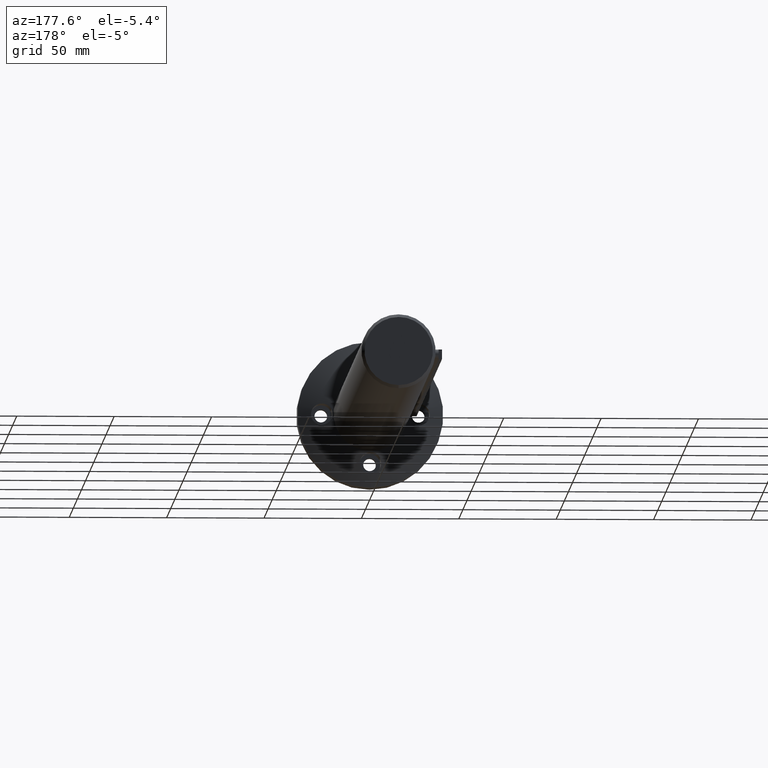
[diagram: clean part render]
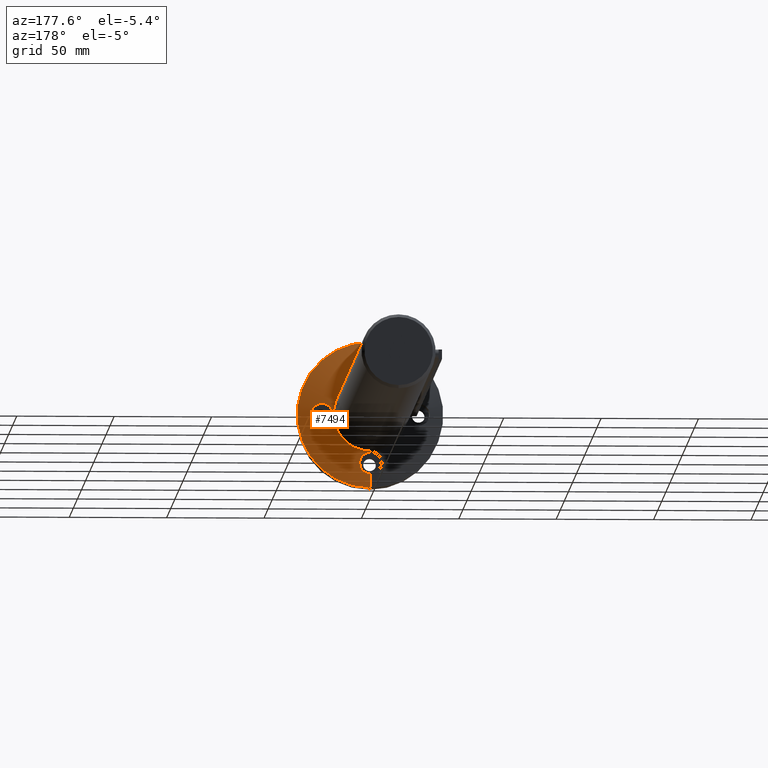
[diagram: same view with one face highlighted and labeled with its STEP entity id]
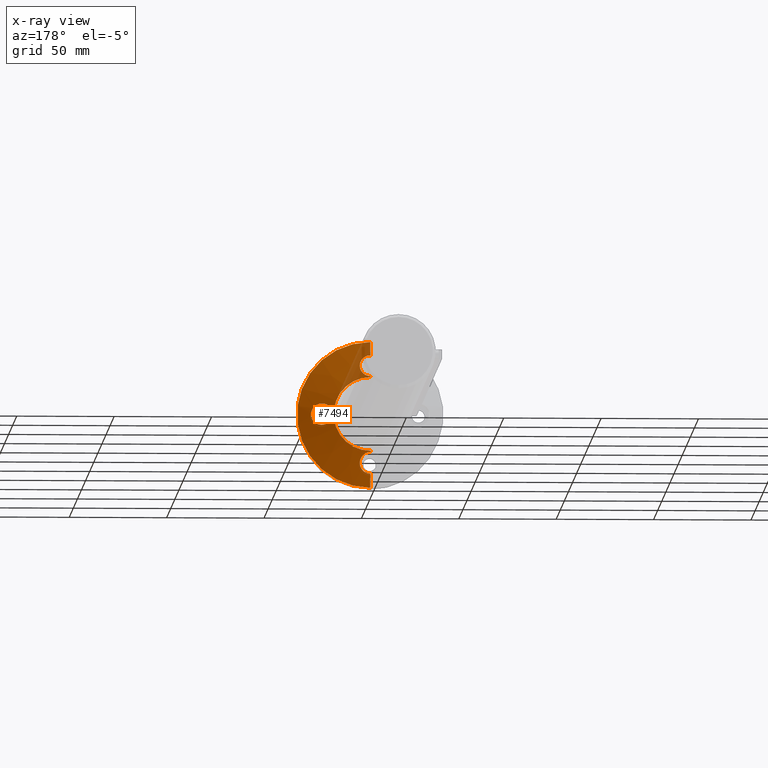
[diagram: x-ray of the same camera — body ghosted, the highlighted face saturated]
A machine part, auxiliary view. The second image highlights one B-rep face of the part: STEP entity #7494.
The next image is the same camera in x-ray: the body ghosted, the highlighted face saturated — about 9% of this face is hidden behind the body in this view.
In plain terms, the highlighted conical surface has half-angle 74.876 deg.
Its self-contained STEP definition (entity closure, byte-faithful):
#428 = CARTESIAN_POINT ( 'NONE',  ( 26.39801527887995600, 10.78649645093713300, -5.331111311917179100 ) ) ;
#575 = EDGE_CURVE ( 'NONE', #12314, #9036, #16338, .T. ) ;
#579 = CARTESIAN_POINT ( 'NONE',  ( 5.323847713684704900, 11.53299256842802100, 23.57490783584345800 ) ) ;
#616 = CARTESIAN_POINT ( 'NONE',  ( 25.35161197941932100, 11.05388829628119800, 5.500000000000087000 ) ) ;
#752 = CARTESIAN_POINT ( 'NONE',  ( 5.211254955513627600, 11.62997660117241200, -23.23243377498425800 ) ) ;
#810 = CARTESIAN_POINT ( 'NONE',  ( 5.314325494468595100, 11.53434734721425800, -23.57191978165690200 ) ) ;
#880 = CARTESIAN_POINT ( 'NONE',  ( 4.782018660267179500, 11.91167692518994600, -22.25995271287487400 ) ) ;
#987 = FACE_BOUND ( 'NONE', #18546, .T. ) ;
#1031 = CARTESIAN_POINT ( 'NONE',  ( 1.268515319562685700, 9.854007025275715000, 30.35485702944822300 ) ) ;
#1183 = CARTESIAN_POINT ( 'NONE',  ( 20.24633523570094300, 12.54180942294675400, -2.790142792179151500 ) ) ;
#1246 = CARTESIAN_POINT ( 'NONE',  ( 20.65872060524221600, 12.40711030405202600, 3.396038314297764100 ) ) ;
#1375 = CARTESIAN_POINT ( 'NONE',  ( 24.64476905354898400, 11.24046511584360900, -5.499999999999903200 ) ) ;
#1505 = CIRCLE ( 'NONE', #18237, 37.50000000000000000 ) ;
#1552 = DIRECTION ( 'NONE',  ( 0.0000000000000000000, 0.0000000000000000000, -1.000000000000000000 ) ) ;
#1946 = CARTESIAN_POINT ( 'NONE',  ( 30.46322909123390200, 9.829928301211518600, -0.7326783261846602200 ) ) ;
#2000 = CARTESIAN_POINT ( 'NONE',  ( 29.75568654415203800, 9.988235776532468100, 2.786356102141914500 ) ) ;
#2159 = B_SPLINE_CURVE_WITH_KNOTS ( 'NONE', 3,
 ( #6485, #3553, #14259, #428, #12877, #11304, #11239, #15750, #3481, #12812, #18901, #11364, #8112, #15682, #6620, #14328, #9626, #9768, #11172, #1946, #2209, #12735, #8040, #9560, #5225, #5153, #2000, #15813, #14119, #17285, #9839, #8177, #18834, #15612, #17160, #3624, #18696, #5030, #616, #17358 ),
 .UNSPECIFIED., .F., .F.,
 ( 4, 2, 2, 2, 2, 2, 2, 2, 2, 2, 2, 2, 2, 2, 2, 2, 2, 2, 2, 4 ),
 ( 0.004311644938302642100, 0.005401883976986389000, 0.006492123015670136000, 0.007582362054353883000, 0.008127481573695753000, 0.008672601093037621300, 0.009762840131721368200, 0.01085307917040511900, 0.01139819868974699400, 0.01194331820908886600, 0.01303355724777261400, 0.01412379628645636500, 0.01521403532514011400, 0.01630427436382386000, 0.01684939388316573900, 0.01739451340250761100, 0.01848475244119135100, 0.01957499147987509100, 0.02066523051855883400, 0.02175546955724257100 ),
 .UNSPECIFIED. ) ;
#2209 = CARTESIAN_POINT ( 'NONE',  ( 30.49960728186630700, 9.821881071039060300, -0.3709465265261098800 ) ) ;
#2242 = CARTESIAN_POINT ( 'NONE',  ( 0.7305167947689194000, 12.78214695166682300, 19.53629187338277300 ) ) ;
#2345 = CARTESIAN_POINT ( 'NONE',  ( 2.933552825463481000E-020, 12.79476704397512600, -19.50000000000000000 ) ) ;
#2405 = CARTESIAN_POINT ( 'NONE',  ( 2.463065993991829600, 12.59775193426848200, -20.07898576543667700 ) ) ;
#2470 = CARTESIAN_POINT ( 'NONE',  ( 1.452936648100822300, 12.73181138826895200, -19.68260184398263500 ) ) ;
#2536 = CARTESIAN_POINT ( 'NONE',  ( 5.150900771339578000, 11.67807697762335200, -23.06358428374239400 ) ) ;
#2547 = DIRECTION ( 'NONE',  ( 1.182229189286094700E-016, -0.2609090251427748100, 0.9653633930282662400 ) ) ;
#2582 = VERTEX_POINT ( 'NONE', #4165 ) ;
#2587 = CARTESIAN_POINT ( 'NONE',  ( 24.29090165356358400, 11.33578375906610500, 5.465753319676697000 ) ) ;
#2634 = CARTESIAN_POINT ( 'NONE',  ( 0.3663604389410376500, 9.821794071002148700, 30.50000000000002100 ) ) ;
#2649 = CARTESIAN_POINT ( 'NONE',  ( 19.86551706481137500, 12.66954804288231200, 1.980006346052376200 ) ) ;
#2777 = CARTESIAN_POINT ( 'NONE',  ( 19.53617602912471100, 12.78218837909437000, -0.7282936372457390300 ) ) ;
#3405 = EDGE_CURVE ( 'NONE', #2582, #15244, #9441, .T. ) ;
#3481 = CARTESIAN_POINT ( 'NONE',  ( 28.31422562025025900, 10.32106958471439900, -4.392987676842142100 ) ) ;
#3553 = CARTESIAN_POINT ( 'NONE',  ( 25.35312727900952700, 11.05348832088656200, -5.499999999999920100 ) ) ;
#3581 = CARTESIAN_POINT ( 'NONE',  ( 2.792191036982707000, 12.54132927226839900, 20.24781217420992600 ) ) ;
#3616 = EDGE_CURVE ( 'NONE', #12031, #6566, #11096, .T. ) ;
#3624 = CARTESIAN_POINT ( 'NONE',  ( 26.74505894518536700, 10.70002591120182300, 5.227896720093726300 ) ) ;
#3653 = CARTESIAN_POINT ( 'NONE',  ( 4.966595659734359500, 10.54192508235724200, 27.38951969629811200 ) ) ;
#3830 = CARTESIAN_POINT ( 'NONE',  ( 4.967902490863672900, 10.54249188098472500, -27.38715868255627600 ) ) ;
#3862 = LINE ( 'NONE', #9161, #11021 ) ;
#3891 = CARTESIAN_POINT ( 'NONE',  ( 0.3659692272805254400, 9.821794071002148700, -30.49999999999999600 ) ) ;
#4021 = CARTESIAN_POINT ( 'NONE',  ( 1.269371542004518600, 9.854049323828499900, -30.35466675231073100 ) ) ;
#4063 = CARTESIAN_POINT ( 'NONE',  ( 20.07343379618089000, 12.59947481286847200, -2.472133689391236900 ) ) ;
#4133 = CARTESIAN_POINT ( 'NONE',  ( 22.60000021001328800, 11.81203444870643100, 4.951956539565912900 ) ) ;
#4165 = CARTESIAN_POINT ( 'NONE',  ( 3.459627207591272700E-015, 12.92990217911026100, 19.00000000000000000 ) ) ;
#4191 = CARTESIAN_POINT ( 'NONE',  ( 19.69310695005757900, 12.72824270405712500, 1.456177317733412500 ) ) ;
#4270 = CARTESIAN_POINT ( 'NONE',  ( 23.25211947559593300, 11.62388095170341500, 5.226848775469945500 ) ) ;
#4336 = CARTESIAN_POINT ( 'NONE',  ( 21.68343123589858100, 12.08521741425533100, -4.401826608064181000 ) ) ;
#4625 = ORIENTED_EDGE ( 'NONE', *, *, #3616, .T. ) ;
#4935 = ORIENTED_EDGE ( 'NONE', *, *, #575, .T. ) ;
#5030 = CARTESIAN_POINT ( 'NONE',  ( 25.70581800175863300, 10.96228019779466400, 5.466163780723657200 ) ) ;
#5116 = CARTESIAN_POINT ( 'NONE',  ( 5.462207999339392800, 11.34251861966361500, 24.26615674234959700 ) ) ;
#5153 = CARTESIAN_POINT ( 'NONE',  ( 29.92953220108860200, 9.949093012591230700, 2.466649701499749700 ) ) ;
#5179 = CARTESIAN_POINT ( 'NONE',  ( 4.801955506852511500, 10.46565087671083900, 27.70572362948266900 ) ) ;
#5225 = CARTESIAN_POINT ( 'NONE',  ( 30.21351964314696700, 9.885443222124655100, 1.789933351272828400 ) ) ;
#5252 = CARTESIAN_POINT ( 'NONE',  ( 5.501371497882317400, 11.05889151857052100, 25.33236919784458200 ) ) ;
#5293 = CARTESIAN_POINT ( 'NONE',  ( 5.469230626416604400, 10.96883332008365600, -25.68036295555628400 ) ) ;
#5325 = CARTESIAN_POINT ( 'NONE',  ( 2.388081677647586400E-015, 12.79476704397512600, 19.50000000000000000 ) ) ;
#5355 = CARTESIAN_POINT ( 'NONE',  ( 0.7307220069664403000, 12.78213703328114900, -19.53632052536513800 ) ) ;
#5489 = CARTESIAN_POINT ( 'NONE',  ( 2.141538868095484100, 9.916285189883963000, -30.07570811153192700 ) ) ;
#5547 = CARTESIAN_POINT ( 'NONE',  ( 5.328402174451660800, 10.79273945818467900, -26.37477251970350200 ) ) ;
#5590 = CARTESIAN_POINT ( 'NONE',  ( 19.50043621198926400, 12.79461589640680000, 0.3767933620478544600 ) ) ;
#5719 = CARTESIAN_POINT ( 'NONE',  ( 19.64775441663947200, 12.74380156284863100, 1.279345098856618600 ) ) ;
#5784 = CARTESIAN_POINT ( 'NONE',  ( 25.00000000000000000, 11.14669907847771100, 5.500000000000087000 ) ) ;
#5846 = CARTESIAN_POINT ( 'NONE',  ( 20.25282714415752100, 12.53966918358475600, 2.800737919241833100 ) ) ;
#5957 = DIRECTION ( 'NONE',  ( 0.0000000000000000000, -0.2609090251427748100, -0.9653633930282662400 ) ) ;
#6087 = CARTESIAN_POINT ( 'NONE',  ( 0.0000000000000000000, 12.92990217911026100, 0.0000000000000000000 ) ) ;
#6426 = EDGE_CURVE ( 'NONE', #17836, #2582, #11503, .T. ) ;
#6485 = CARTESIAN_POINT ( 'NONE',  ( 24.99999999999995000, 11.14669907847769700, -5.500000000000593300 ) ) ;
#6566 = VERTEX_POINT ( 'NONE', #14265 ) ;
#6581 = VECTOR ( 'NONE', #16697, 1000.000000000000200 ) ;
#6620 = CARTESIAN_POINT ( 'NONE',  ( 29.92742105640299100, 9.949569175526320900, -2.470165208596000600 ) ) ;
#6649 = CARTESIAN_POINT ( 'NONE',  ( 0.0000000000000000000, 7.929902179110256600, -37.50000000000000700 ) ) ;
#6650 = CARTESIAN_POINT ( 'NONE',  ( 5.468845139676812300, 10.96792591244648700, 25.68388061440690600 ) ) ;
#6717 = CARTESIAN_POINT ( 'NONE',  ( 5.222052817795360000, 11.62805871065856200, 23.23735822942292000 ) ) ;
#6732 = VERTEX_POINT ( 'NONE', #7217 ) ;
#6780 = CARTESIAN_POINT ( 'NONE',  ( 4.053354256708110400, 10.22553131565372700, 28.72191729353113100 ) ) ;
#6820 = CARTESIAN_POINT ( 'NONE',  ( 1.449148040046901700, 9.864248390927720300, -30.30881485741547400 ) ) ;
#6827 = CARTESIAN_POINT ( 'NONE',  ( 2.326828918379971000E-015, 12.92990217911026100, 19.00000000000000000 ) ) ;
#6885 = CARTESIAN_POINT ( 'NONE',  ( 4.947613217353374000, 11.81978868365077200, -22.57161333785272800 ) ) ;
#6959 = CARTESIAN_POINT ( 'NONE',  ( 5.501901411166169700, 11.06040944635164700, -25.32650701660558900 ) ) ;
#7036 = CARTESIAN_POINT ( 'NONE',  ( 0.0000000000000000000, 12.92990217911026100, -19.00000000000000000 ) ) ;
#7084 = CARTESIAN_POINT ( 'NONE',  ( 5.369937587109558500, 10.83621335307170100, -26.20212921917931200 ) ) ;
#7114 = CARTESIAN_POINT ( 'NONE',  ( 1.970185223921731200, 9.902316631906982600, 30.13822784086261900 ) ) ;
#7128 = CARTESIAN_POINT ( 'NONE',  ( 22.59293394441234800, 11.81354847447173200, -4.958160141443325000 ) ) ;
#7192 = CARTESIAN_POINT ( 'NONE',  ( 24.64629338015773600, 11.24006275769552600, 5.500000000000085300 ) ) ;
#7217 = CARTESIAN_POINT ( 'NONE',  ( 4.592425496802575200E-015, 7.929902179110256600, 37.50000000000000700 ) ) ;
#7256 = CARTESIAN_POINT ( 'NONE',  ( 19.53826930483846200, 12.78146369818860100, 0.7433199040871109100 ) ) ;
#7321 = CARTESIAN_POINT ( 'NONE',  ( 21.40450809677707500, 12.17112873440942500, -4.177709203131093400 ) ) ;
#7389 = CARTESIAN_POINT ( 'NONE',  ( 22.27604885431228300, 11.90689928990734200, -4.791220722361005700 ) ) ;
#7459 = CARTESIAN_POINT ( 'NONE',  ( 24.99999999999995000, 11.14669907847769700, -5.500000000000593300 ) ) ;
#7494 = ADVANCED_FACE ( 'NONE', ( #987, #8643 ), #11739, .T. ) ;
#7804 = B_SPLINE_CURVE_WITH_KNOTS ( 'NONE', 3,
 ( #5325, #19055, #2242, #18864, #9930, #9719, #3581, #14489, #18922, #9867, #8461, #12698, #14222, #6717, #579, #5116, #15776, #5252, #6650, #15910, #17314, #3653, #5179, #15844, #17382, #9798, #6780, #8335, #18983, #8586, #10131, #7114, #16307, #17840, #1031, #19316, #2634, #17645 ),
 .UNSPECIFIED., .F., .F.,
 ( 4, 2, 2, 2, 2, 2, 2, 2, 2, 2, 2, 2, 2, 2, 2, 2, 2, 2, 4 ),
 ( 0.004468675874222746400, 0.005563339059980967700, 0.006658002245739189100, 0.007752665431497411300, 0.008847328617255633500, 0.009941991803013854000, 0.01103665498877207500, 0.01213131817453029900, 0.01322598136028851900, 0.01432064454604674100, 0.01541530773180496300, 0.01650997091756318400, 0.01705730251044228900, 0.01760463410332139800, 0.01869929728907961800, 0.01979396047483783500, 0.02034129206771694700, 0.02088862366059605900, 0.02198328684635428300 ),
 .UNSPECIFIED. ) ;
#8040 = CARTESIAN_POINT ( 'NONE',  ( 30.46358631091310800, 9.829849400859330900, 0.7290808785039762900 ) ) ;
#8112 = CARTESIAN_POINT ( 'NONE',  ( 29.34333952576795900, 10.08200699524948800, -3.393991864041229400 ) ) ;
#8177 = CARTESIAN_POINT ( 'NONE',  ( 28.60147672033569300, 10.25346617875427500, 4.172496248590133100 ) ) ;
#8209 = AXIS2_PLACEMENT_3D ( 'NONE', #15332, #15122, #18078 ) ;
#8335 = CARTESIAN_POINT ( 'NONE',  ( 3.675617059129112200, 10.13611863300059000, 29.10721749067213100 ) ) ;
#8371 = CARTESIAN_POINT ( 'NONE',  ( 2.938961254956614900, 12.50873751943362700, -20.34758227524511300 ) ) ;
#8461 = CARTESIAN_POINT ( 'NONE',  ( 4.393597216007564500, 12.08853217656832900, 21.67259087426898700 ) ) ;
#8534 = VERTEX_POINT ( 'NONE', #6649 ) ;
#8556 = CARTESIAN_POINT ( 'NONE',  ( 2.299777061742616100, 12.62401261099572600, -20.00062747177734900 ) ) ;
#8586 = CARTESIAN_POINT ( 'NONE',  ( 2.792065152134218600, 9.988884288748204600, 29.75279478908536400 ) ) ;
#8626 = CARTESIAN_POINT ( 'NONE',  ( 1.799119899854849400, 9.888371023045698000, -30.20064542323675000 ) ) ;
#8643 = FACE_OUTER_BOUND ( 'NONE', #9393, .T. ) ;
#8928 = CARTESIAN_POINT ( 'NONE',  ( 0.0000000000000000000, 7.929902179110256600, 0.0000000000000000000 ) ) ;
#8993 = CARTESIAN_POINT ( 'NONE',  ( 23.59245198915028800, 11.52808601102288400, -5.328575826706672700 ) ) ;
#9036 = VERTEX_POINT ( 'NONE', #11610 ) ;
#9161 = CARTESIAN_POINT ( 'NONE',  ( 0.0000000000000000000, 12.92990217911026100, -19.00000000000000000 ) ) ;
#9393 = EDGE_LOOP ( 'NONE', ( #18825, #16366, #19655, #17112, #16662, #14233, #4625, #13265 ) ) ;
#9441 = LINE ( 'NONE', #16764, #6581 ) ;
#9560 = CARTESIAN_POINT ( 'NONE',  ( 30.31996674102899500, 9.861758818588228300, 1.442320414659219700 ) ) ;
#9574 = LINE ( 'NONE', #15071, #11724 ) ;
#9626 = CARTESIAN_POINT ( 'NONE',  ( 30.20074463195731300, 9.888348899079753500, -1.798798504746121700 ) ) ;
#9719 = CARTESIAN_POINT ( 'NONE',  ( 2.468581621147383700, 12.60003873454271400, 20.07175197771180600 ) ) ;
#9768 = CARTESIAN_POINT ( 'NONE',  ( 30.30871347240178400, 9.864271000224102100, -1.449476476335380000 ) ) ;
#9798 = CARTESIAN_POINT ( 'NONE',  ( 4.172963970365067600, 10.25692965047576200, 28.58734067658143000 ) ) ;
#9839 = CARTESIAN_POINT ( 'NONE',  ( 28.98739522229115600, 10.16393220135383200, 3.792528077569750500 ) ) ;
#9867 = CARTESIAN_POINT ( 'NONE',  ( 4.167737185273481700, 12.17464881433680700, 21.39317917661739400 ) ) ;
#9903 = CARTESIAN_POINT ( 'NONE',  ( 3.399538895553316100, 10.08300512688654600, -29.33897491740260900 ) ) ;
#9930 = CARTESIAN_POINT ( 'NONE',  ( 1.800098683597059800, 12.69491683162051700, 19.79028133976828500 ) ) ;
#9970 = CARTESIAN_POINT ( 'NONE',  ( 5.461522981259030900, 11.34387212702258000, -24.26117754429241600 ) ) ;
#10040 = CARTESIAN_POINT ( 'NONE',  ( 5.168826341156211000, 10.66494120784668800, -26.88822130286109400 ) ) ;
#10131 = CARTESIAN_POINT ( 'NONE',  ( 2.472433405420768200, 9.949804931522992400, 29.92637125077496300 ) ) ;
#10342 = CARTESIAN_POINT ( 'NONE',  ( 19.79060584883359300, 12.69480448169631600, -1.801308445721915300 ) ) ;
#10345 = DIRECTION ( 'NONE',  ( 0.0000000000000000000, 0.0000000000000000000, -1.000000000000000000 ) ) ;
#10404 = DIRECTION ( 'NONE',  ( -0.0000000000000000000, -1.000000000000000000, -0.0000000000000000000 ) ) ;
#11021 = VECTOR ( 'NONE', #16793, 1000.000000000000200 ) ;
#11096 = B_SPLINE_CURVE_WITH_KNOTS ( 'NONE', 3,
 ( #19213, #3891, #19092, #4021, #6820, #8626, #5489, #13188, #14528, #13070, #9903, #11622, #19283, #14646, #17739, #3830, #10040, #16078, #5547, #7084, #5293, #6959, #11689, #9970, #17683, #810, #752, #2536, #6885, #880, #19151, #17478, #16020, #16149, #8371, #11564, #2405, #8556, #11509, #2470, #5355, #19021, #2345 ),
 .UNSPECIFIED., .F., .F.,
 ( 4, 2, 2, 1, 2, 2, 2, 2, 2, 2, 2, 2, 2, 2, 2, 2, 2, 2, 2, 2, 2, 4 ),
 ( 0.004156932632860999200, 0.005251641798959674100, 0.005798996382009011900, 0.006346350965058350700, 0.006893705548107689400, 0.007441060131157027300, 0.008535769297255697800, 0.009630478463354370100, 0.01072518762945304200, 0.01127254221250238200, 0.01181989679555172200, 0.01291460596165039000, 0.01400931512774906300, 0.01455666971079839000, 0.01510402429384772100, 0.01619873345994639000, 0.01729344262604505500, 0.01838815179214372400, 0.01893550637519305500, 0.01948286095824238900, 0.02057757012434105800, 0.02167227929043972400 ),
 .UNSPECIFIED. ) ;
#11172 = CARTESIAN_POINT ( 'NONE',  ( 30.35443100828521800, 9.854101781118036000, -1.270232650247568700 ) ) ;
#11239 = CARTESIAN_POINT ( 'NONE',  ( 27.71693622410607100, 10.46296021026792600, -4.795535695635385800 ) ) ;
#11304 = CARTESIAN_POINT ( 'NONE',  ( 27.40213364727337400, 10.53886800639369700, -4.960424269708189700 ) ) ;
#11364 = CARTESIAN_POINT ( 'NONE',  ( 29.11194656676200800, 10.13503169928273300, -3.670213132540351100 ) ) ;
#11503 = CIRCLE ( 'NONE', #18534, 19.00000000000000000 ) ;
#11509 = CARTESIAN_POINT ( 'NONE',  ( 1.799743158468904800, 12.69493638698337400, -19.79022789344831800 ) ) ;
#11564 = CARTESIAN_POINT ( 'NONE',  ( 2.782771837079522500, 12.54011710082313300, -20.25244735781782900 ) ) ;
#11610 = CARTESIAN_POINT ( 'NONE',  ( 24.99999999999995000, 11.14669907847769700, -5.500000000000593300 ) ) ;
#11622 = CARTESIAN_POINT ( 'NONE',  ( 3.676339689098283300, 10.13624367754781200, -29.10666778821124400 ) ) ;
#11668 = CARTESIAN_POINT ( 'NONE',  ( 20.89407963679254400, 12.33147089453301100, 3.676869845146165900 ) ) ;
#11689 = CARTESIAN_POINT ( 'NONE',  ( 5.497928393171960700, 11.24914986480610700, -24.61230249725001700 ) ) ;
#11724 = VECTOR ( 'NONE', #5957, 1000.000000000000200 ) ;
#11739 = CONICAL_SURFACE ( 'NONE', #8209, 19.00000000000000000, 1.306832603169191900 ) ;
#11798 = CARTESIAN_POINT ( 'NONE',  ( 21.40492301613935000, 12.17101172482539300, 4.177723706429410400 ) ) ;
#11855 = CARTESIAN_POINT ( 'NONE',  ( 20.65504239133734300, 12.40829197157196100, -3.391691152067359800 ) ) ;
#11922 = CARTESIAN_POINT ( 'NONE',  ( 19.80177735575459500, 12.69118639174531200, 1.806113940221611100 ) ) ;
#12031 = VERTEX_POINT ( 'NONE', #19223 ) ;
#12071 = VERTEX_POINT ( 'NONE', #15202 ) ;
#12314 = VERTEX_POINT ( 'NONE', #17268 ) ;
#12698 = CARTESIAN_POINT ( 'NONE',  ( 4.783950851261268500, 11.91066452009636100, 22.26336662316198200 ) ) ;
#12735 = CARTESIAN_POINT ( 'NONE',  ( 30.50038645487304800, 9.821708458484272000, 0.3592080557950391700 ) ) ;
#12812 = CARTESIAN_POINT ( 'NONE',  ( 28.59450232513296800, 10.25525555856164100, -4.166771559063914100 ) ) ;
#12877 = CARTESIAN_POINT ( 'NONE',  ( 26.74443258359108800, 10.70018142760305600, -5.228098120366393400 ) ) ;
#13070 = CARTESIAN_POINT ( 'NONE',  ( 2.946542287679370500, 10.01278198270148100, -29.64771777929495400 ) ) ;
#13165 = CARTESIAN_POINT ( 'NONE',  ( 22.76092542741397300, 11.76520802948444800, 5.026709029842984400 ) ) ;
#13188 = CARTESIAN_POINT ( 'NONE',  ( 2.469171123225882600, 9.951733953299941100, -29.91796849416682500 ) ) ;
#13265 = ORIENTED_EDGE ( 'NONE', *, *, #15243, .F. ) ;
#13362 = CARTESIAN_POINT ( 'NONE',  ( 22.28391171164822300, 11.90503775956174700, 4.785889360564469900 ) ) ;
#13961 = EDGE_CURVE ( 'NONE', #8534, #6732, #1505, .T. ) ;
#14119 = CARTESIAN_POINT ( 'NONE',  ( 29.34332243868776800, 10.08210339974441200, 3.379119399839520800 ) ) ;
#14222 = CARTESIAN_POINT ( 'NONE',  ( 4.951241614467225100, 11.81766684371240900, 22.57885396590878500 ) ) ;
#14233 = ORIENTED_EDGE ( 'NONE', *, *, #15236, .F. ) ;
#14259 = CARTESIAN_POINT ( 'NONE',  ( 25.70339149777459700, 10.96291213909510600, -5.466299931479382800 ) ) ;
#14265 = CARTESIAN_POINT ( 'NONE',  ( 2.933552825463481000E-020, 12.79476704397512600, -19.50000000000000000 ) ) ;
#14328 = CARTESIAN_POINT ( 'NONE',  ( 30.13846299019480300, 9.902264143090510700, -1.969516870861640000 ) ) ;
#14489 = CARTESIAN_POINT ( 'NONE',  ( 3.387862173763904700, 12.40916729106790100, 20.65235583215766400 ) ) ;
#14528 = CARTESIAN_POINT ( 'NONE',  ( 2.789348409470462400, 9.991052188462578700, -29.74370694667941700 ) ) ;
#14646 = CARTESIAN_POINT ( 'NONE',  ( 4.410885465968205700, 10.32299049601955300, -28.30497522290810900 ) ) ;
#14698 = CARTESIAN_POINT ( 'NONE',  ( 23.59073183740008200, 11.52855335683839400, 5.328343369412102100 ) ) ;
#14834 = CARTESIAN_POINT ( 'NONE',  ( 20.07945912238852100, 12.59745854884791200, 2.484278172901921400 ) ) ;
#15071 = CARTESIAN_POINT ( 'NONE',  ( 0.0000000000000000000, 12.92990217911026100, -19.00000000000000000 ) ) ;
#15122 = DIRECTION ( 'NONE',  ( -0.0000000000000000000, -1.000000000000000000, -0.0000000000000000000 ) ) ;
#15202 = CARTESIAN_POINT ( 'NONE',  ( -1.113853148102376100E-013, 9.821794071001834300, 30.50000000000142500 ) ) ;
#15236 = EDGE_CURVE ( 'NONE', #12031, #8534, #3862, .T. ) ;
#15243 = EDGE_CURVE ( 'NONE', #17836, #6566, #9574, .T. ) ;
#15244 = VERTEX_POINT ( 'NONE', #15283 ) ;
#15283 = CARTESIAN_POINT ( 'NONE',  ( 2.388081677647586400E-015, 12.79476704397512600, 19.50000000000000000 ) ) ;
#15332 = CARTESIAN_POINT ( 'NONE',  ( 0.0000000000000000000, 12.92990217911026100, 0.0000000000000000000 ) ) ;
#15612 = CARTESIAN_POINT ( 'NONE',  ( 27.72444106992680400, 10.46115986991493700, 4.791216785204406700 ) ) ;
#15682 = CARTESIAN_POINT ( 'NONE',  ( 29.75451569812139500, 9.988496458238621800, -2.788971044237212200 ) ) ;
#15750 = CARTESIAN_POINT ( 'NONE',  ( 28.16722114926457000, 10.35580099309853700, -4.500104049368617100 ) ) ;
#15776 = CARTESIAN_POINT ( 'NONE',  ( 5.498540748694669100, 11.24610934745267300, 24.62369257736251900 ) ) ;
#15813 = CARTESIAN_POINT ( 'NONE',  ( 29.45191593116820900, 10.05731161396681900, 3.234660453641800400 ) ) ;
#15844 = CARTESIAN_POINT ( 'NONE',  ( 4.506562022109227100, 10.35797113081633600, 28.15805763137955300 ) ) ;
#15910 = CARTESIAN_POINT ( 'NONE',  ( 5.335595905389847200, 10.79074253118279500, 26.38107790906791900 ) ) ;
#16020 = CARTESIAN_POINT ( 'NONE',  ( 3.660586514113096000, 12.33608363214248100, -20.87962133072429800 ) ) ;
#16078 = CARTESIAN_POINT ( 'NONE',  ( 5.228035689199858300, 10.70720154645964200, -26.71741434898094200 ) ) ;
#16149 = CARTESIAN_POINT ( 'NONE',  ( 3.386386959734148500, 12.40954954378550000, -20.65117037193439100 ) ) ;
#16150 = EDGE_CURVE ( 'NONE', #12071, #6732, #17437, .T. ) ;
#16307 = CARTESIAN_POINT ( 'NONE',  ( 1.798894054365437300, 9.888351199172577200, 30.20073408124640900 ) ) ;
#16338 = B_SPLINE_CURVE_WITH_KNOTS ( 'NONE', 3,
 ( #5784, #7192, #2587, #14698, #4270, #13165, #4133, #13362, #19523, #17990, #11798, #11668, #1246, #5846, #14834, #2649, #11922, #4191, #5719, #7256, #5590, #17923, #2777, #19456, #10342, #4063, #1183, #11855, #16450, #7321, #4336, #7389, #7128, #19330, #8993, #18197, #1375, #7459 ),
 .UNSPECIFIED., .F., .F.,
 ( 4, 2, 2, 2, 2, 2, 2, 2, 2, 2, 2, 2, 2, 2, 2, 2, 2, 2, 4 ),
 ( 0.02175546955724257500, 0.02285220342231100000, 0.02394893728737942200, 0.02449730421991363700, 0.02504567115244784800, 0.02614240501751628100, 0.02723913888258471700, 0.02833587274765315300, 0.02888423968018737100, 0.02943260661272158900, 0.03052934047779002800, 0.03162607434285846800, 0.03272280820792690400, 0.03381954207299534000, 0.03491627593806377600, 0.03601300980313221200, 0.03710974366820064800, 0.03820647753326908400, 0.03930321139833752700 ),
 .UNSPECIFIED. ) ;
#16366 = ORIENTED_EDGE ( 'NONE', *, *, #3405, .T. ) ;
#16450 = CARTESIAN_POINT ( 'NONE',  ( 20.88837726299837200, 12.33327552460887900, -3.670882003093972400 ) ) ;
#16662 = ORIENTED_EDGE ( 'NONE', *, *, #13961, .F. ) ;
#16697 = DIRECTION ( 'NONE',  ( 1.182229189286094700E-016, -0.2609090251427748100, 0.9653633930282662400 ) ) ;
#16740 = DIRECTION ( 'NONE',  ( -0.0000000000000000000, -1.000000000000000000, -0.0000000000000000000 ) ) ;
#16764 = CARTESIAN_POINT ( 'NONE',  ( 2.326828918379971000E-015, 12.92990217911026100, 19.00000000000000000 ) ) ;
#16793 = DIRECTION ( 'NONE',  ( 0.0000000000000000000, -0.2609090251427748100, -0.9653633930282662400 ) ) ;
#17093 = ORIENTED_EDGE ( 'NONE', *, *, #18211, .T. ) ;
#17112 = ORIENTED_EDGE ( 'NONE', *, *, #16150, .T. ) ;
#17160 = CARTESIAN_POINT ( 'NONE',  ( 27.40293085053605900, 10.53867437112418200, 4.960046185841436600 ) ) ;
#17192 = VECTOR ( 'NONE', #2547, 1000.000000000000200 ) ;
#17268 = CARTESIAN_POINT ( 'NONE',  ( 25.00000000000000000, 11.14669907847771100, 5.500000000000087000 ) ) ;
#17285 = CARTESIAN_POINT ( 'NONE',  ( 29.11125673669789600, 10.13536770577222000, 3.657931897908543600 ) ) ;
#17314 = CARTESIAN_POINT ( 'NONE',  ( 5.233320405375236500, 10.70401953910290700, 26.72894024216336100 ) ) ;
#17358 = CARTESIAN_POINT ( 'NONE',  ( 25.00000000000000000, 11.14669907847771100, 5.500000000000087000 ) ) ;
#17382 = CARTESIAN_POINT ( 'NONE',  ( 4.399394881585819500, 10.32306844158661900, 28.30574743495280300 ) ) ;
#17437 = LINE ( 'NONE', #6827, #17192 ) ;
#17478 = CARTESIAN_POINT ( 'NONE',  ( 4.162462199660893700, 12.17646817304751000, -21.38733859295906100 ) ) ;
#17645 = CARTESIAN_POINT ( 'NONE',  ( -1.113853148102376100E-013, 9.821794071001834300, 30.50000000000142500 ) ) ;
#17683 = CARTESIAN_POINT ( 'NONE',  ( 5.357363069767500500, 11.48664412545550200, -23.74314523008387600 ) ) ;
#17739 = CARTESIAN_POINT ( 'NONE',  ( 4.802929697500866600, 10.46611067055650700, -27.70381917642255600 ) ) ;
#17836 = VERTEX_POINT ( 'NONE', #7036 ) ;
#17840 = CARTESIAN_POINT ( 'NONE',  ( 1.448340443405189900, 9.864196994943945600, 30.30904556042478500 ) ) ;
#17923 = CARTESIAN_POINT ( 'NONE',  ( 19.49957128668993500, 12.79491559324883300, -0.3639492627777051700 ) ) ;
#17990 = CARTESIAN_POINT ( 'NONE',  ( 21.68168104196424300, 12.08574430053779000, 4.400671286890115200 ) ) ;
#18078 = DIRECTION ( 'NONE',  ( 0.0000000000000000000, 0.0000000000000000000, -1.000000000000000000 ) ) ;
#18197 = CARTESIAN_POINT ( 'NONE',  ( 24.28603813545560200, 11.33711655954846800, -5.464903494096301300 ) ) ;
#18211 = EDGE_CURVE ( 'NONE', #9036, #12314, #2159, .T. ) ;
#18237 = AXIS2_PLACEMENT_3D ( 'NONE', #8928, #10404, #10345 ) ;
#18534 = AXIS2_PLACEMENT_3D ( 'NONE', #6087, #16740, #1552 ) ;
#18546 = EDGE_LOOP ( 'NONE', ( #4935, #17093 ) ) ;
#18696 = CARTESIAN_POINT ( 'NONE',  ( 26.40565092555111100, 10.78457310463493400, 5.329284286355812300 ) ) ;
#18825 = ORIENTED_EDGE ( 'NONE', *, *, #6426, .T. ) ;
#18834 = CARTESIAN_POINT ( 'NONE',  ( 28.32293588542895100, 10.31875850623793200, 4.397321290019283100 ) ) ;
#18864 = CARTESIAN_POINT ( 'NONE',  ( 1.452771644363541400, 12.73182726517059600, 19.68255551701425400 ) ) ;
#18901 = CARTESIAN_POINT ( 'NONE',  ( 28.72844951014792900, 10.22401038401996600, -4.047320904230546500 ) ) ;
#18922 = CARTESIAN_POINT ( 'NONE',  ( 3.662877091618369300, 12.33549474859003100, 20.88144186526458800 ) ) ;
#18983 = CARTESIAN_POINT ( 'NONE',  ( 3.398776130519253400, 10.08283800800105100, 29.33970124957141600 ) ) ;
#19021 = CARTESIAN_POINT ( 'NONE',  ( 0.3648619855372782200, 12.79476704397512800, -19.50000000000000000 ) ) ;
#19055 = CARTESIAN_POINT ( 'NONE',  ( 0.3648518266785275600, 12.79476704397512200, 19.50000000000000700 ) ) ;
#19092 = CARTESIAN_POINT ( 'NONE',  ( 0.7290720677751094700, 9.829793801805541500, -30.46383514390779700 ) ) ;
#19151 = CARTESIAN_POINT ( 'NONE',  ( 4.390879537497967900, 12.08963694117972000, -21.66897335795600600 ) ) ;
#19213 = CARTESIAN_POINT ( 'NONE',  ( 9.206006763929207800E-025, 9.821794071002150500, -30.50000000000000400 ) ) ;
#19223 = CARTESIAN_POINT ( 'NONE',  ( 9.206006763929207800E-025, 9.821794071002150500, -30.50000000000000400 ) ) ;
#19258 = EDGE_CURVE ( 'NONE', #15244, #12071, #7804, .T. ) ;
#19283 = CARTESIAN_POINT ( 'NONE',  ( 4.181351142652715700, 10.25587521657749300, -28.59116923218717300 ) ) ;
#19316 = CARTESIAN_POINT ( 'NONE',  ( 0.7292888781834060400, 9.829811271870077900, 30.46375671304501900 ) ) ;
#19330 = CARTESIAN_POINT ( 'NONE',  ( 23.25374576072406500, 11.62340737004371900, -5.227610842054941600 ) ) ;
#19456 = CARTESIAN_POINT ( 'NONE',  ( 19.68073247271950200, 12.73245290255175100, -1.445398554026924700 ) ) ;
#19523 = CARTESIAN_POINT ( 'NONE',  ( 22.12868370208513700, 11.95124120845223600, 4.694393447289947100 ) ) ;
#19655 = ORIENTED_EDGE ( 'NONE', *, *, #19258, .T. ) ;